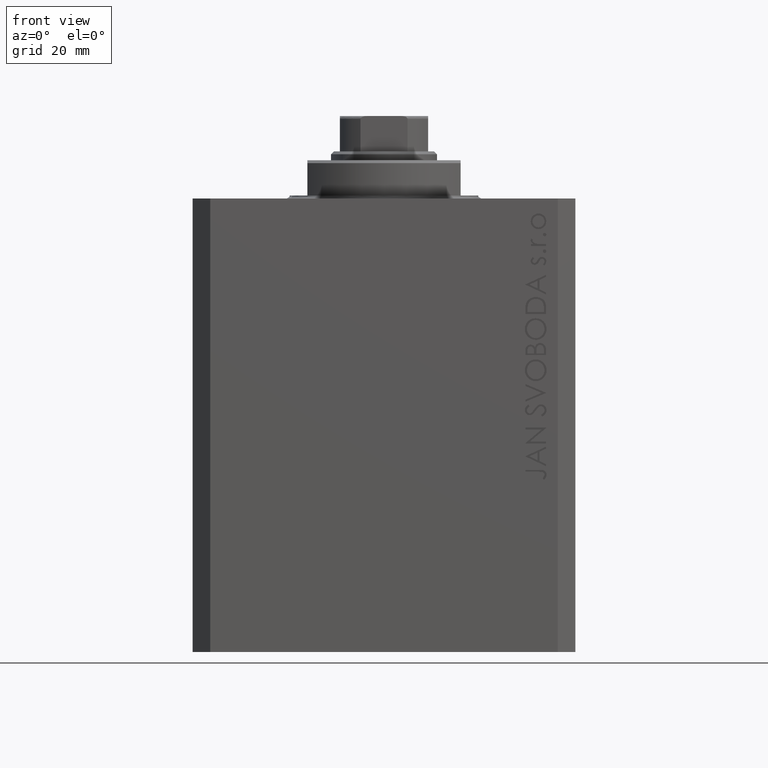
[diagram: clean part render]
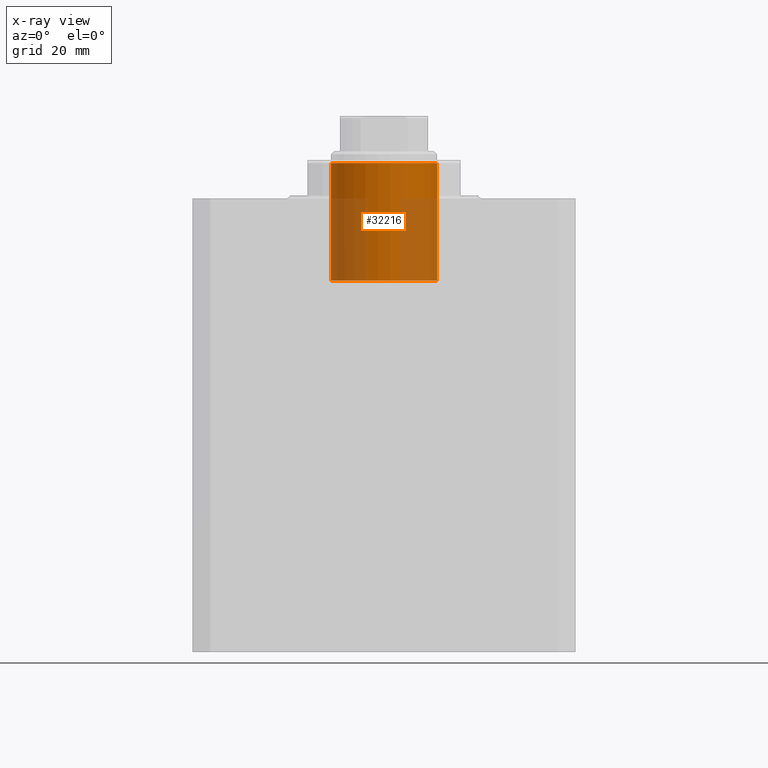
[diagram: x-ray — body ghosted, one internal face saturated and labeled with its STEP entity id]
A machine part, front view, then the same camera in x-ray: the body is ghosted and one INTERNAL B-rep face — a face not visible from any outside direction — is saturated and labeled: STEP entity #32216.
In plain terms, the highlighted cylindrical surface (partial cylindrical patch) has radius 9 mm, axis along (0, -0, 1).
Its self-contained STEP definition (entity closure, byte-faithful):
#1688 = VERTEX_POINT ( 'NONE', #6747 ) ;
#2880 = AXIS2_PLACEMENT_3D ( 'NONE', #39404, #14416, #28319 ) ;
#2929 = CARTESIAN_POINT ( 'NONE',  ( 9.000000000000000000, 1.102182119232617714E-15, 14.00000000000000178 ) ) ;
#3869 = EDGE_CURVE ( 'NONE', #27901, #46279, #12055, .T. ) ;
#6747 = CARTESIAN_POINT ( 'NONE',  ( -9.000000000000000000, 0.000000000000000000, -5.999999999999987566 ) ) ;
#9065 = ORIENTED_EDGE ( 'NONE', *, *, #24697, .F. ) ;
#10162 = DIRECTION ( 'NONE',  ( -1.000000000000000000, 0.000000000000000000, 0.000000000000000000 ) ) ;
#11732 = ORIENTED_EDGE ( 'NONE', *, *, #26693, .T. ) ;
#12051 = AXIS2_PLACEMENT_3D ( 'NONE', #30695, #34559, #20372 ) ;
#12055 = CIRCLE ( 'NONE', #2880, 9.000000000000000000 ) ;
#12253 = ORIENTED_EDGE ( 'NONE', *, *, #46544, .T. ) ;
#13019 = DIRECTION ( 'NONE',  ( -0.000000000000000000, -0.000000000000000000, -1.000000000000000000 ) ) ;
#13164 = FACE_OUTER_BOUND ( 'NONE', #29912, .T. ) ;
#14098 = CARTESIAN_POINT ( 'NONE',  ( -9.000000000000000000, 0.000000000000000000, 14.00000000000000178 ) ) ;
#14234 = CARTESIAN_POINT ( 'NONE',  ( 0.000000000000000000, 0.000000000000000000, -5.999999999999987566 ) ) ;
#14416 = DIRECTION ( 'NONE',  ( 0.000000000000000000, 0.000000000000000000, -1.000000000000000000 ) ) ;
#17215 = DIRECTION ( 'NONE',  ( -0.000000000000000000, -0.000000000000000000, -1.000000000000000000 ) ) ;
#19567 = CARTESIAN_POINT ( 'NONE',  ( 9.000000000000000000, 1.102182119232617714E-15, -5.999999999999987566 ) ) ;
#20372 = DIRECTION ( 'NONE',  ( -1.000000000000000000, 0.000000000000000000, 0.000000000000000000 ) ) ;
#21054 = LINE ( 'NONE', #14098, #37052 ) ;
#24697 = EDGE_CURVE ( 'NONE', #46279, #1688, #21054, .T. ) ;
#26693 = EDGE_CURVE ( 'NONE', #35892, #1688, #36369, .T. ) ;
#27901 = VERTEX_POINT ( 'NONE', #2929 ) ;
#28319 = DIRECTION ( 'NONE',  ( -1.000000000000000000, 0.000000000000000000, 0.000000000000000000 ) ) ;
#29912 = EDGE_LOOP ( 'NONE', ( #43735, #12253, #11732, #9065 ) ) ;
#30695 = CARTESIAN_POINT ( 'NONE',  ( 0.000000000000000000, 0.000000000000000000, 14.00000000000000178 ) ) ;
#32216 = ADVANCED_FACE ( 'NONE', ( #13164 ), #38639, .F. ) ;
#34559 = DIRECTION ( 'NONE',  ( -0.000000000000000000, -0.000000000000000000, -1.000000000000000000 ) ) ;
#35892 = VERTEX_POINT ( 'NONE', #19567 ) ;
#35897 = CARTESIAN_POINT ( 'NONE',  ( -9.000000000000000000, 0.000000000000000000, 14.00000000000000178 ) ) ;
#36369 = CIRCLE ( 'NONE', #39432, 9.000000000000000000 ) ;
#37052 = VECTOR ( 'NONE', #17215, 1000.000000000000000 ) ;
#38262 = LINE ( 'NONE', #45454, #39967 ) ;
#38639 = CYLINDRICAL_SURFACE ( 'NONE', #12051, 9.000000000000000000 ) ;
#39404 = CARTESIAN_POINT ( 'NONE',  ( 0.000000000000000000, 0.000000000000000000, 14.00000000000000178 ) ) ;
#39432 = AXIS2_PLACEMENT_3D ( 'NONE', #14234, #47134, #10162 ) ;
#39967 = VECTOR ( 'NONE', #13019, 1000.000000000000000 ) ;
#43735 = ORIENTED_EDGE ( 'NONE', *, *, #3869, .F. ) ;
#45454 = CARTESIAN_POINT ( 'NONE',  ( 9.000000000000000000, 1.102182119232617714E-15, 14.00000000000000178 ) ) ;
#46279 = VERTEX_POINT ( 'NONE', #35897 ) ;
#46544 = EDGE_CURVE ( 'NONE', #27901, #35892, #38262, .T. ) ;
#47134 = DIRECTION ( 'NONE',  ( 0.000000000000000000, 0.000000000000000000, -1.000000000000000000 ) ) ;